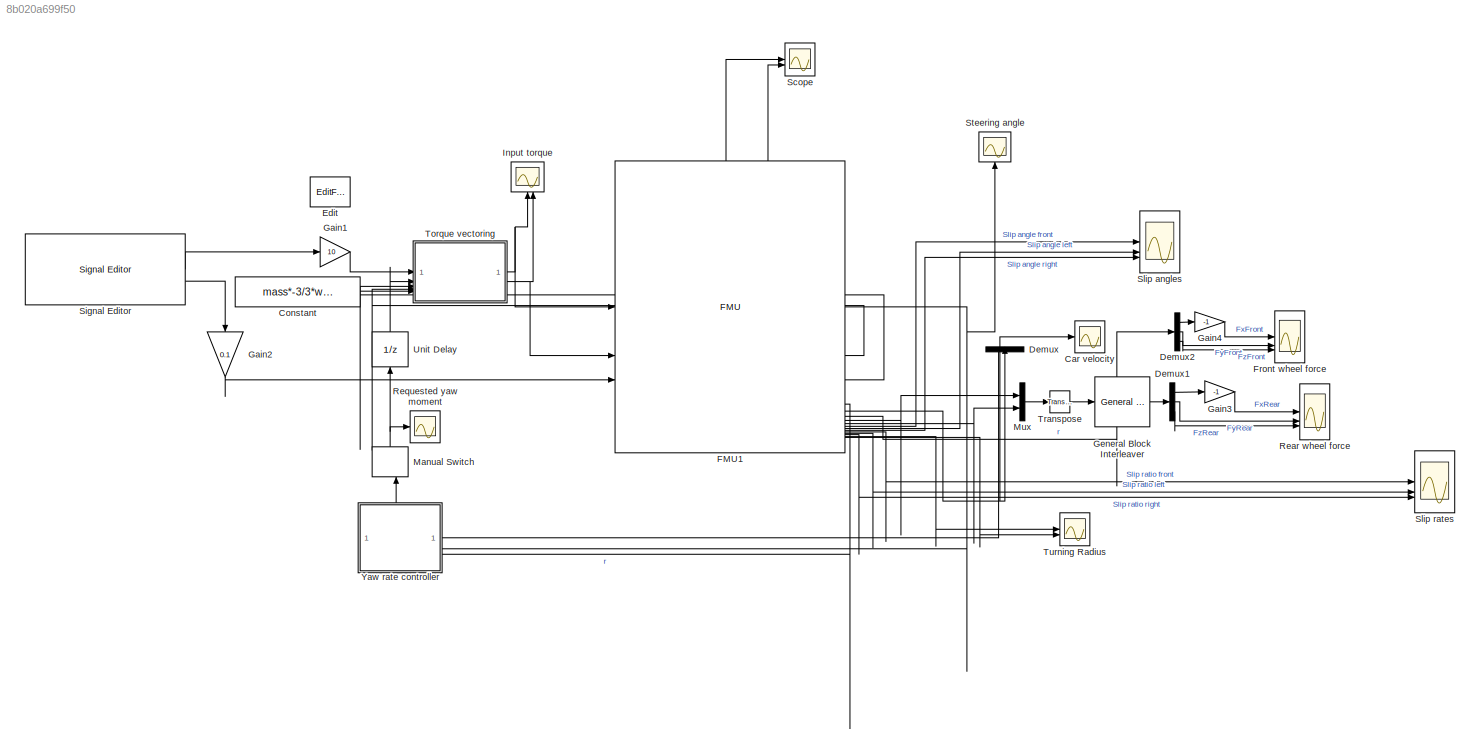
MODEL slx_8b020a699f50
KIND model
CONFIG AbsTol = auto
CONFIG EnableMultiTasking = off
CONFIG FixedStep = auto
CONFIG MaxStep = auto
CONFIG MinStep = auto
CONFIG RelTol = 1e-3
CONFIG SampleTimeConstraint = Unconstrained
CONFIG SolverName = VariableStepAuto
CONFIG StartTime = 0.0
CONFIG StopTime = 50
BLOCK [Scope] Car velocity
  Floating = off
  NumInputPorts = 1
  ScopeSpecificationString = Simulink.scopes.TimeScopeBlockCfg('CurrentConfiguration', extmgr.ConfigurationSet(extmgr.Configuration('Core','General UI',true),extmgr.Configuration('Core','Source UI',true),extmgr.Configuration('Sources','WiredSimulink',true,'DataLoggingVariableName','ScopeData2'),extmgr.Configuration('Visuals','Time Domain',true,'SerializedDisplays',{struct('MinYLimReal','-3.65356','MaxYLimReal','18.54336','YLa...<+1414ch>
BLOCK [Constant] Constant
  Value = mass*-3/3*wheelRadiusL
BLOCK [Demux] Demux
  NameLocation = left
  Outputs = 2
BLOCK [Demux] Demux1
  Outputs = 3
BLOCK [Demux] Demux2
  Outputs = 3
BLOCK [EditField] Edit
  Alignment = Center
  AttributesFormatString = Initial speed
  LabelPosition = Hide
  ShowInitialText = on
BLOCK [FMU] FMU1
  FMUCachedDialogLayout = {"Geometry":[468,174,698,530],"ParameterColumnsWidthConfig":"{\"columns\":[{\"name\":\"Parameter\",\"width\":550},{\"name\":\"Value\",\"width\":462},{\"name\":\"Unit\",\"width\":438},{\"name\":\"Description\",\"width\":571}]}","InputColumnsWidthConfig":[],"OutputColumnsWidthConfig":"{\"columns\":[{\"name\":\"Name\",\"width\":558},{\"name\":\"Visibility\",\"width\":152},{\"name\":\"Start\",\"width\...<+85ch>
  FMUInitializeEnumObject = off
  FMUMode = ModelExchange
  FMUName = ThreeWheelVehicle3FMUpid.fmu
  MaskDisplay = disp('ThreeWheelVehicle3FMU');\nport_label('output',1,'outActualSteeringAngle');\nport_label('output',2,'outAngvLeft');\nport_label('output',3,'outAngvRight');\nport_label('output',4,'outCarAngularAcc');\nport_label('output',5,'outCarAngularVelocity');\nport_label('output',6,'outCarVelocity');\nport_label('output',7,'outForceFrontWheel');\nport_label('output',8,'outForceLeftWheel');\nport_label('output',9,...<+597ch>
  MaskPromptString = airResistanceLongitudinal|backLengthm|body2|c_rollFRolling resistance|c_rollLRolling resistance|c_rollRRolling resistance|dragCoefAir drag coefficient|front|front2|frontLengthm|frontTrail|frontWheel|gm/s2 Gravity|gearRatio|inertiaBodykgm2|inertiaWheelF|inertiaWheelL|inertiaWheelR|masskg|massCenterZm height to COM|muAF|muAL|muAR|muSF|muSL|muSR|neg|neg2|planarWorld|positionPhi|rear|rearLeft|rearLeft...<+2735ch>
  MaskType = ThreeWheelVehicle3FMU [Model Exchange, v2.0]
  MultithreadedSim = off
  airResistanceLongitudinal = struct('r',[0.0,1.0],'rho',1.18)
  backLength = Lr
  body2 = struct('I',1e-08,'m',0.1)
  body2_sphere_shapeType = sphere
  body_sphere_shapeType = sphere
  c_rollF = rollResF
  c_rollL = rollResL
  c_rollR = rollResR
  dragCoef = dragCoeff
  front = struct('r',[0.0],'width',0.2)
  front2 = struct('r',[1e-10,0.0])
  front2_cylinder_shapeType = cylinder
  frontLength = Lf
  frontTrail = struct('r',[0.0,-0.1])
  frontTrail_cylinder_shapeType = cylinder
  frontWheel = struct('diameter',0.1,'r',[0.0,1.0],'v0_roll',0.1)
  frontWheel_cylinder_shapeType = cylinder
  frontWheel_rim1_shapeType = cylinder
  frontWheel_rim2_shapeType = cylinder
  front_cylinder_shapeType = cylinder
  g = g
  gearRatio = gearRatio
  inertiaBody = Izz
  inertiaWheelF = inertiaF
  inertiaWheelL = inertiaL
  inertiaWheelR = inertiaR
  mass = mass
  massCenterZ = h
  muAF = muAF
  muAL = muAL
  muAR = muAR
  muSF = muSF
  muSL = muSL
  muSR = muSR
  neg = struct('k',-1.0)
  neg2 = struct('k',-1.0)
  planarWorld = struct('constantGravity',[0.0,0.0],'defaultFrameDiameterFraction',40.0,'defaultN_to_m',1000.0,'defaultNm_to_m',1000.0,'defaultSpecularCoefficient',0.7,'defaultWidthFraction',20.0,'defaultZPosition',0.0,'gravityArrowTail',[0.0,0.0],'nominalLength',1.0)
  planarWorld_label1 = x
  planarWorld_label2 = y
  positionPhi = struct('f_crit',50.0)
  rear = struct('r',[0.0],'width',0.2)
  rearLeft = struct('r',[0,0.0])
  rearLeftWheel = struct('diameter',0.1,'r',[0.0,1.0],'v0_roll',0.1)
  rearLeftWheel_cylinder_shapeType = cylinder
  rearLeftWheel_rim1_shapeType = cylinder
  rearLeftWheel_rim2_shapeType = cylinder
  rearLeft_cylinder_shapeType = cylinder
  rearRight = struct('r',[0,0.0])
  rearRightWheel = struct('diameter',0.1,'r',[0.0,1.0],'v0_roll',0.1)
  rearRightWheel_cylinder_shapeType = cylinder
  rearRightWheel_rim1_shapeType = cylinder
  rearRightWheel_rim2_shapeType = cylinder
  rearRight_cylinder_shapeType = cylinder
  rear_cylinder_shapeType = cylinder
  revolute_cylinder_shapeType = cylinder
  sAdF = sAdF
  sAdL = sAdL
  sAdR = sAdR
  sSlF = sSlF
  sSlL = sSlL
  sSlR = sSlR
  speedStart = 14
  turnRadiusMAX = 1000.0
  vAdF = vAdF
  vAdL = vAdL
  vAdR = vAdR
  vSlF = vSlF
  vSlL = vSlL
  vSlR = vSlR
  vehicleFrontArea = 1.5
  vehicleWidth = rearTrackWidth
  wheelRadiusF = wheelRadiusF
  wheelRadiusL = wheelRadiusL
  wheelRadiusR = wheelRadiusR
BLOCK [Scope] Front wheel force
  Floating = off
  NumInputPorts = 3
  ScopeSpecificationString = Simulink.scopes.TimeScopeBlockCfg('CurrentConfiguration', extmgr.ConfigurationSet(extmgr.Configuration('Core','General UI',true),extmgr.Configuration('Core','Source UI',true),extmgr.Configuration('Sources','WiredSimulink',true,'DataLoggingVariableName','ScopeData3'),extmgr.Configuration('Visuals','Time Domain',true,'SerializedDisplays',{struct('MinYLimReal','-37.12635','MaxYLimReal','4.12515','YLa...<+2761ch>
BLOCK [Gain] Gain1
  Gain = 10
BLOCK [Gain] Gain2
  Gain = 0.1
  NameLocation = left
BLOCK [Gain] Gain3
  Gain = -1
BLOCK [Gain] Gain4
  Gain = -1
BLOCK [Reference] General Block Interleaver  REF=commblkintrlv2/General Block
Interleaver
  SourceBlock = commblkintrlv2/General Block\nInterleaver
  SourceType = General Block Interleaver
  StatePerturbationForJacobian = 1.0e-05
BLOCK [Scope] Input torque
  Floating = off
  NameLocation = right
  NumInputPorts = 2
  ScopeSpecificationString = Simulink.scopes.TimeScopeBlockCfg('CurrentConfiguration', extmgr.ConfigurationSet(extmgr.Configuration('Core','General UI',true),extmgr.Configuration('Core','Source UI',true),extmgr.Configuration('Sources','WiredSimulink',true,'DataLoggingVariableName','ScopeData1'),extmgr.Configuration('Visuals','Time Domain',true,'SerializedDisplays',{struct('MinYLimReal','-17.77779','MaxYLimReal','37.77779','YL...<+1493ch>
BLOCK [ManualSwitch] Manual Switch
  CurrentSetting = 0
  NameLocation = right
BLOCK [Mux] Mux
  DisplayOption = bar
  Inputs = 2
BLOCK [Scope] Rear wheel force
  Floating = off
  NumInputPorts = 3
  ScopeSpecificationString = Simulink.scopes.TimeScopeBlockCfg('CurrentConfiguration', extmgr.ConfigurationSet(extmgr.Configuration('Core','General UI',true),extmgr.Configuration('Core','Source UI',true),extmgr.Configuration('Sources','WiredSimulink',true,'DataLoggingVariableName','ScopeData2'),extmgr.Configuration('Visuals','Time Domain',true,'SerializedDisplays',{struct('MinYLimReal','-334.38025','MaxYLimReal','743.66852','...<+2775ch>
BLOCK [Scope] Requested yaw moment
  Floating = off
  NameLocation = right
  NumInputPorts = 1
  ScopeSpecificationString = Simulink.scopes.TimeScopeBlockCfg('CurrentConfiguration', extmgr.ConfigurationSet(extmgr.Configuration('Core','General UI',true),extmgr.Configuration('Core','Source UI',true),extmgr.Configuration('Sources','WiredSimulink',true,'DataLoggingVariableName','ScopeData3'),extmgr.Configuration('Visuals','Time Domain',true,'SerializedDisplays',{struct('MinYLimReal','-232.21022','MaxYLimReal','244.88232','...<+1386ch>
BLOCK [Scope] Scope
  Floating = off
  NumInputPorts = 2
  ScopeSpecificationString = Simulink.scopes.TimeScopeBlockCfg('CurrentConfiguration', extmgr.ConfigurationSet(extmgr.Configuration('Core','General UI',true),extmgr.Configuration('Core','Source UI',true),extmgr.Configuration('Sources','WiredSimulink',true,'DataLoggingVariableName','ScopeData1'),extmgr.Configuration('Visuals','Time Domain',true,'SerializedDisplays',{struct('MinYLimReal','40.78614','MaxYLimReal','62.58838','YLa...<+1406ch>
BLOCK [Reference] Signal Editor  REF=SignalEditorBlockLib/Signal Editor
  LibrarySourceBlock = simulink/Sources/Signal Editor
  SourceBlock = SignalEditorBlockLib/Signal Editor
  SourceType = SignalEditor
  UserDataPersistent = on
BLOCK [Scope] Slip angles
  Floating = off
  NumInputPorts = 3
  ScopeSpecificationString = Simulink.scopes.TimeScopeBlockCfg('CurrentConfiguration', extmgr.ConfigurationSet(extmgr.Configuration('Core','General UI',true),extmgr.Configuration('Core','Source UI',true),extmgr.Configuration('Sources','WiredSimulink',true,'DataLoggingVariableName','ScopeData4'),extmgr.Configuration('Visuals','Time Domain',true,'SerializedDisplays',{struct('MinYLimReal','-0.16935','MaxYLimReal','0.18207','YLab...<+2751ch>
BLOCK [Scope] Slip rates
  Floating = off
  NumInputPorts = 3
  ScopeSpecificationString = Simulink.scopes.TimeScopeBlockCfg('CurrentConfiguration', extmgr.ConfigurationSet(extmgr.Configuration('Core','General UI',true),extmgr.Configuration('Core','Source UI',true),extmgr.Configuration('Sources','WiredSimulink',true,'DataLoggingVariableName','ScopeData1'),extmgr.Configuration('Visuals','Time Domain',true,'SerializedDisplays',{struct('MinYLimReal','-0.00601','MaxYLimReal','0.00067','YLab...<+2080ch>
BLOCK [Scope] Steering angle
  Floating = off
  NameLocation = right
  NumInputPorts = 1
  ScopeSpecificationString = Simulink.scopes.TimeScopeBlockCfg('CurrentConfiguration', extmgr.ConfigurationSet(extmgr.Configuration('Core','General UI',true),extmgr.Configuration('Core','Source UI',true),extmgr.Configuration('Sources','WiredSimulink',true,'DataLoggingVariableName','ScopeData1'),extmgr.Configuration('Visuals','Time Domain',true,'SerializedDisplays',{struct('MinYLimReal','-0.125','MaxYLimReal','0.125','YLabelRe...<+1383ch>
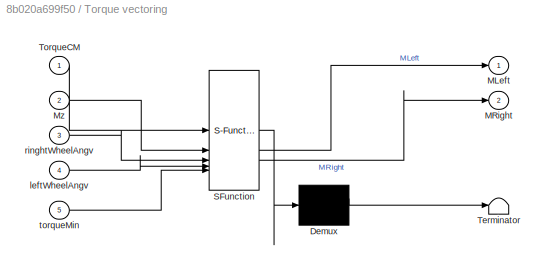
BLOCK [SubSystem] Torque vectoring
  ErrorFcn = Stateflow.Translate.translate
  PermitHierarchicalResolution = ExplicitOnly
  SFBlockType = MATLAB Function
  TreatAsAtomicUnit = on
BLOCK [Demux] Torque vectoring/ Demux 
  Outputs = 1
BLOCK [S-Function] Torque vectoring/ SFunction 
  EnableBusSupport = on
  FunctionName = sf_sfun
  Parameters = gearRatio,rearTrackWidth,wheelRadiusL
  PortCounts = [5 3]
  SFcnIsStateOwnerBlock = off
  SFunctionDeploymentMode = off
  Tag = Stateflow S-Function 1
BLOCK [Terminator] Torque vectoring/ Terminator 
BLOCK [Outport] Torque vectoring/MLeft
BLOCK [Outport] Torque vectoring/MRight
  Port = 2
BLOCK [Inport] Torque vectoring/Mz
  Port = 2
BLOCK [Inport] Torque vectoring/TorqueCM
BLOCK [Inport] Torque vectoring/leftWheelAngv
  Port = 4
BLOCK [Inport] Torque vectoring/ringhtWheelAngv
  Port = 3
BLOCK [Inport] Torque vectoring/torqueMin
  Port = 5
BLOCK [Reference] Transpose  REF=matrix_library/Transpose
  LibrarySourceBlock = simulink/Matrix\nOperations/Transpose
  SourceBlock = matrix_library/Transpose
  SourceType = Transpose
BLOCK [Scope] Turning Radius
  Floating = off
  NumInputPorts = 2
  ScopeSpecificationString = Simulink.scopes.TimeScopeBlockCfg('CurrentConfiguration', extmgr.ConfigurationSet(extmgr.Configuration('Core','General UI',true),extmgr.Configuration('Core','Source UI',true),extmgr.Configuration('Sources','WiredSimulink',true,'DataLoggingVariableName','ScopeData1'),extmgr.Configuration('Visuals','Time Domain',true),extmgr.Configuration('Tools','Plot Navigation',true),extmgr.Configuration('Tools',...<+40ch>
BLOCK [UnitDelay] Unit Delay
  HasFrameUpgradeWarning = on
  NameLocation = right
  SampleTime = 0.001
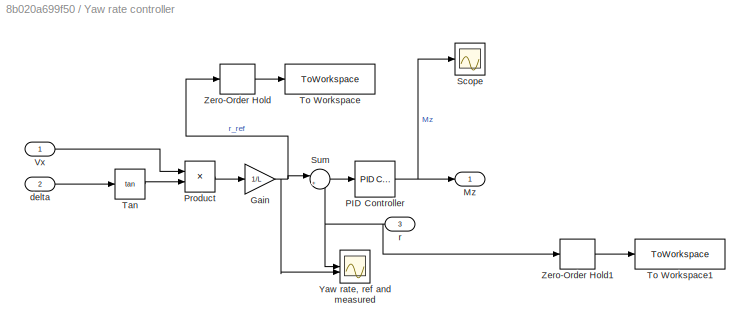
BLOCK [SubSystem] Yaw rate controller
  PortSchema = {"entries":[{"content":{"sides":[{"content":{},"type":"ConnectorPlacement.EquallySpacedRectSide","uuid":"857998bb-17b2-4c26-a88e-7a272ab33241"},{"content":{"connectorIds":["In1","In2","In3"],"side":"RIGHT"},"type":"ConnectorPlacement.EquallySpacedRectSide","uuid":"e6bac797-4ab7-4d5a-9049-404e840be7e3"},{"content":{"connectorIds":["Out1"],"side":"TOP"},"type":"ConnectorPlacement.EquallySpacedRectSi...<+235ch>
BLOCK [Gain] Yaw rate controller/Gain
  Gain = 1/L
BLOCK [Outport] Yaw rate controller/Mz
BLOCK [Reference] Yaw rate controller/PID Controller  REF=slpidlib/PID Controller
  LibrarySourceBlock = simulink/Continuous/PID Controller
  SourceBlock = slpidlib/PID Controller
  SourceType = PID 1dof
BLOCK [Product] Yaw rate controller/Product
BLOCK [Scope] Yaw rate controller/Scope
  Floating = off
  NumInputPorts = 1
  ScopeSpecificationString = Simulink.scopes.TimeScopeBlockCfg('CurrentConfiguration', extmgr.ConfigurationSet(extmgr.Configuration('Core','General UI',true),extmgr.Configuration('Core','Source UI',true),extmgr.Configuration('Sources','WiredSimulink',true,'DataLoggingVariableName','ScopeData2'),extmgr.Configuration('Visuals','Time Domain',true,'SerializedDisplays',{struct('MinYLimReal','-1.49893','MaxYLimReal','13.4904','YLab...<+1361ch>
BLOCK [Sum] Yaw rate controller/Sum
  Inputs = |+-
BLOCK [Trigonometry] Yaw rate controller/Tan
  Operator = tan
BLOCK [ToWorkspace] Yaw rate controller/To Workspace
  FixptAsFi = on
  MaxDataPoints = inf
  SampleTime = -1
  SaveFormat = Timeseries
  VariableName = input2
BLOCK [ToWorkspace] Yaw rate controller/To Workspace1
  FixptAsFi = on
  MaxDataPoints = inf
  SampleTime = -1
  SaveFormat = Timeseries
  VariableName = output2
BLOCK [Inport] Yaw rate controller/Vx
BLOCK [Scope] Yaw rate controller/Yaw rate, ref and measured
  Floating = off
  NameLocation = right
  NumInputPorts = 2
  ScopeSpecificationString = Simulink.scopes.TimeScopeBlockCfg('CurrentConfiguration', extmgr.ConfigurationSet(extmgr.Configuration('Core','General UI',true),extmgr.Configuration('Core','Source UI',true),extmgr.Configuration('Sources','WiredSimulink',true,'DataLoggingVariableName','stepResponse','DataLogging',true),extmgr.Configuration('Visuals','Time Domain',true,'SerializedDisplays',{struct('MinYLimReal','-1.05621','MaxYLim...<+1734ch>
BLOCK [ZeroOrderHold] Yaw rate controller/Zero-Order Hold
  SampleTime = .001
BLOCK [ZeroOrderHold] Yaw rate controller/Zero-Order Hold1
  SampleTime = .001
BLOCK [Inport] Yaw rate controller/delta
  Port = 2
BLOCK [Inport] Yaw rate controller/r
  Port = 3
LINE Constant:1 -> Torque vectoring:5
LINE Demux1:1 -> Gain3:1
LINE Demux1:2 -> Rear wheel force:2
LINE Demux1:3 -> Rear wheel force:3
LINE Demux2:1 -> Gain4:1
LINE Demux2:2 -> Front wheel force:2
LINE Demux2:3 -> Front wheel force:3
LINE Demux:1 -> Yaw rate controller:1
NET FMU1:1 -> Steering angle:1, Yaw rate controller:2
LINE FMU1:10 -> Slip angles:1
LINE FMU1:11 -> Slip angles:2
LINE FMU1:12 -> Slip angles:3
LINE FMU1:13 -> Slip rates:1
LINE FMU1:14 -> Slip rates:2
LINE FMU1:15 -> Slip rates:3
LINE FMU1:17 -> Turning Radius:1
LINE FMU1:18 -> Turning Radius:2
NET FMU1:2 -> Scope:2, Torque vectoring:4
NET FMU1:3 -> Scope:1, Torque vectoring:3
LINE FMU1:5 -> Yaw rate controller:3
NET FMU1:6 -> Car velocity:1, Demux:1
LINE FMU1:7 -> Demux2:1
LINE FMU1:8 -> Mux:1
LINE FMU1:9 -> Mux:2
LINE Gain1:1 -> Torque vectoring:1
LINE Gain2:1 -> FMU1:3
LINE Gain3:1 -> Rear wheel force:1
LINE Gain4:1 -> Front wheel force:1
LINE General Block Interleaver:1 -> Demux1:1
NET Manual Switch:1 -> Requested yaw moment:1, Unit Delay:1
LINE Mux:1 -> Transpose:1
LINE Signal Editor:1 -> Gain1:1
LINE Signal Editor:2 -> Gain2:1
NET Torque vectoring:1 -> FMU1:1, Input torque:1
NET Torque vectoring:2 -> FMU1:2, Input torque:2
LINE Transpose:1 -> General Block Interleaver:1
LINE Unit Delay:1 -> Torque vectoring:2
NET Yaw rate controller/Gain:1 -> Yaw rate controller/Sum:1, Yaw rate controller/Yaw rate, ref and measured:2, Yaw rate controller/Zero-Order Hold:1
NET Yaw rate controller/PID Controller:1 -> Yaw rate controller/Mz:1, Yaw rate controller/Scope:1
LINE Yaw rate controller/Product:1 -> Yaw rate controller/Gain:1
LINE Yaw rate controller/Sum:1 -> Yaw rate controller/PID Controller:1
LINE Yaw rate controller/Tan:1 -> Yaw rate controller/Product:2
LINE Yaw rate controller/Vx:1 -> Yaw rate controller/Product:1
LINE Yaw rate controller/Zero-Order Hold1:1 -> Yaw rate controller/To Workspace1:1
LINE Yaw rate controller/Zero-Order Hold:1 -> Yaw rate controller/To Workspace:1
LINE Yaw rate controller/delta:1 -> Yaw rate controller/Tan:1
NET Yaw rate controller/r:1 -> Yaw rate controller/Sum:2, Yaw rate controller/Yaw rate, ref and measured:1, Yaw rate controller/Zero-Order Hold1:1
LINE Yaw rate controller:1 -> Manual Switch:2
note: NET lines group one-source signal fan-out (src -> all destinations, sorted); 1:1 wires keep LINE
CHART Torque vectoring states=1 transitions=1
  STATE_LABEL 'eML_blk_kernel()'
  STATE_LABEL 'SCRIPT:\nfunction [MLeft, MRight] = fcn(TorqueCM, Mz, gearRatio, wheelRadiusL, rearTrackWidth, ringhtWheelAngv, leftWheelAngv, torqueMin)\n\nMDiff = wheelRadiusL * Mz / (gearRatio * rearTrackWidth);\nMLeft = TorqueCM + MDiff;\nMRight = TorqueCM - MDiff;\n\ntorqueMaxRight = 245 -.062*ringhtWheelAngv*7;\ntorqueMaxLeft = 245 - .062*leftWheelAngv*7;\n\nif MLeft < torqueMin\n    MLeft = torqueMin;\nelse\n    MLeft ...<+130ch>'
CHART  states=0 transitions=0
